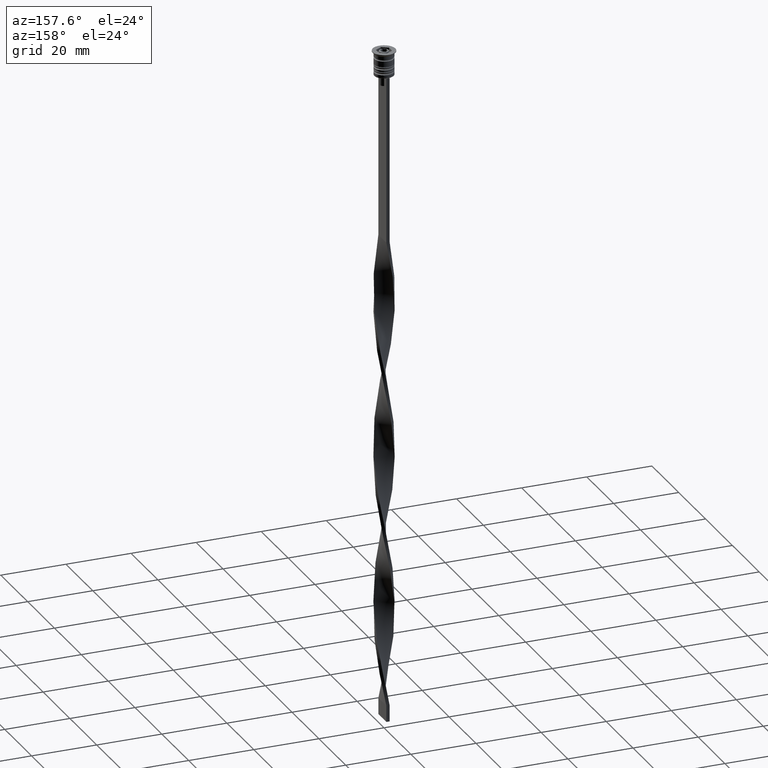
[diagram: clean part render]
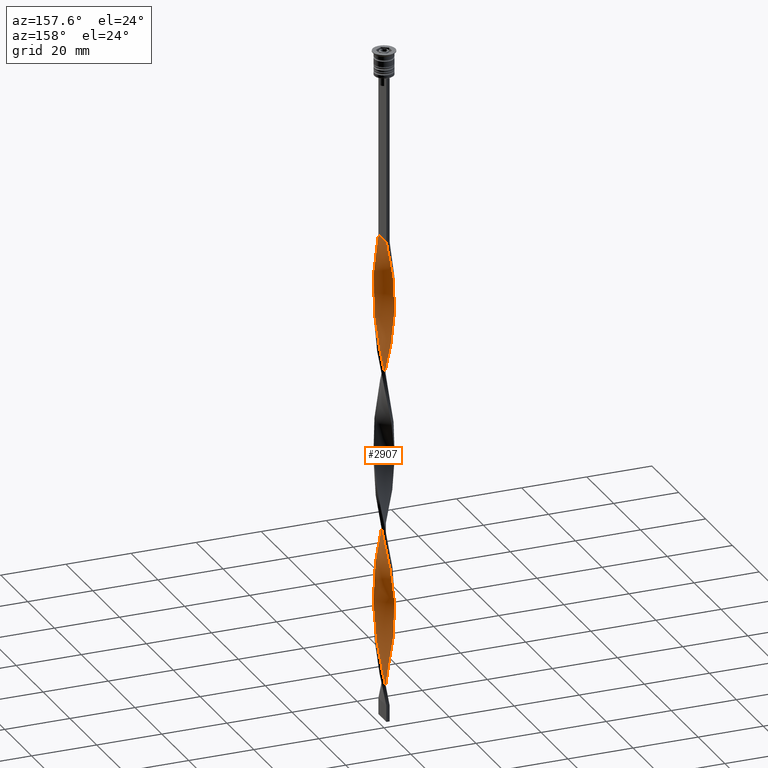
[diagram: same view with one face highlighted and labeled with its STEP entity id]
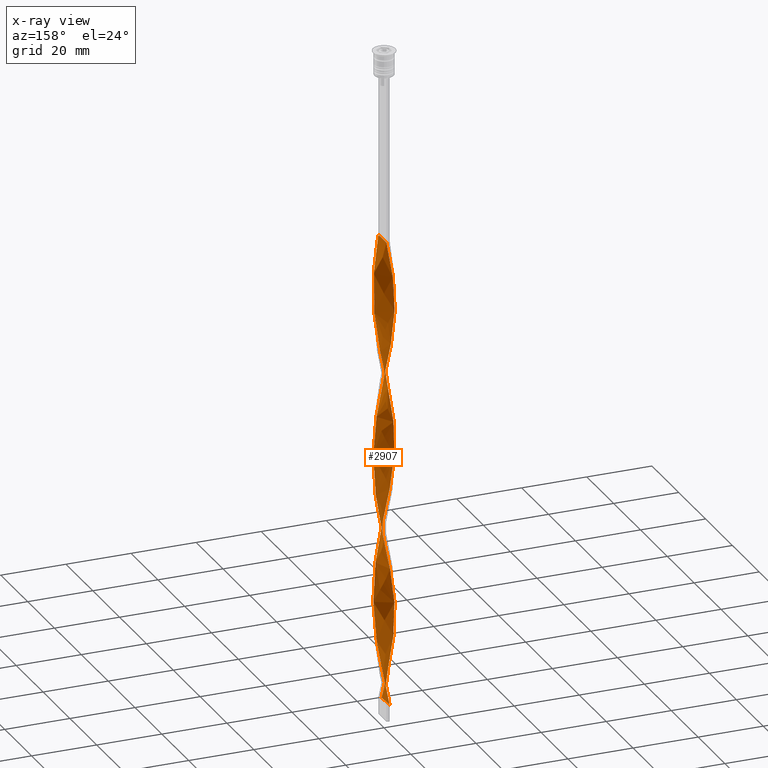
[diagram: x-ray of the same camera — body ghosted, the highlighted face saturated]
A machine part, auxiliary view. The second image highlights one B-rep face of the part: STEP entity #2907.
The next image is the same camera in x-ray: the body ghosted, the highlighted face saturated — about 0% of this face is hidden behind the body in this view.
In plain terms, the highlighted face is a freeform B-spline surface patch.
Its self-contained STEP definition (entity closure, byte-faithful):
#11 = CARTESIAN_POINT ( 'NONE',  ( -2.941068349153452388, 0.7746721665374231014, -177.0882352941176237 ) ) ;
#13 = CARTESIAN_POINT ( 'NONE',  ( 0.05976200360776034309, 3.040794057959990582, -103.6764705882352899 ) ) ;
#27 = CARTESIAN_POINT ( 'NONE',  ( -0.8934446992291310563, 2.920818749814322324, -161.5588235294117396 ) ) ;
#29 = CARTESIAN_POINT ( 'NONE',  ( 2.390591389550001278, -1.880178929838698831, -165.7941176470588118 ) ) ;
#45 = CARTESIAN_POINT ( 'NONE',  ( 3.033336708616754862, 0.2210620097576110610, -177.0882352941176237 ) ) ;
#47 = CARTESIAN_POINT ( 'NONE',  ( -1.414931142305390965, -2.706916227440719247, -144.6176470588235361 ) ) ;
#65 = CARTESIAN_POINT ( 'NONE',  ( -2.390591389550001278, 1.880178929838698831, -117.7941176470588118 ) ) ;
#67 = CARTESIAN_POINT ( 'NONE',  ( -0.2220090612739111235, 3.046331823121015692, -105.0882352941176521 ) ) ;
#82 = CARTESIAN_POINT ( 'NONE',  ( 2.748645434482416050, 1.301901791802658304, -182.7352941176470438 ) ) ;
#84 = CARTESIAN_POINT ( 'NONE',  ( -2.092734363651091112, -2.206912522777888519, -140.3823529411764639 ) ) ;
#101 = CARTESIAN_POINT ( 'NONE',  ( 1.307479267857234673, -2.760420903407855509, -158.7352941176470154 ) ) ;
#121 = CARTESIAN_POINT ( 'NONE',  ( -1.792442958670038555, 2.473170806831126889, -113.5588235294117538 ) ) ;
#124 = CARTESIAN_POINT ( 'NONE',  ( 2.825922375284400712, -1.159132575987103841, -170.0294117647058840 ) ) ;
#138 = CARTESIAN_POINT ( 'NONE',  ( 2.297234924948885926, -2.012992126025985762, -122.0294117647058840 ) ) ;
#142 = CARTESIAN_POINT ( 'NONE',  ( 3.033336708616754862, 0.2210620097576110610, -177.0882352941176237 ) ) ;
#145 = CARTESIAN_POINT ( 'NONE',  ( 3.022308424554498441, 0.3400761486298388703, -134.7352941176470722 ) ) ;
#156 = CARTESIAN_POINT ( 'NONE',  ( 3.053821120486486240, 0.06001802994261524332, -133.3235294117646959 ) ) ;
#162 = CARTESIAN_POINT ( 'NONE',  ( 2.462620696176918145, 1.784796713007145597, -185.5588235294117396 ) ) ;
#166 = CARTESIAN_POINT ( 'NONE',  ( -2.748645434482416050, 1.301901791802657860, -78.26470588235292780 ) ) ;
#182 = CARTESIAN_POINT ( 'NONE',  ( 1.042735103291660970, 2.857044540143419908, -151.6764705882353041 ) ) ;
#187 = CARTESIAN_POINT ( 'NONE',  ( 2.092734363651090668, 2.206912522777888963, -188.3823529411764355 ) ) ;
#190 = CARTESIAN_POINT ( 'NONE',  ( 3.012852296747023484, 0.5021420494578369143, -178.5000000000000000 ) ) ;
#193 = CARTESIAN_POINT ( 'NONE',  ( 1.651582472329342188, -2.553874573485256150, -117.7941176470588118 ) ) ;
#209 = CARTESIAN_POINT ( 'NONE',  ( -1.549961113263636614, -2.616795855119490533, -100.8529411764705941 ) ) ;
#210 = CARTESIAN_POINT ( 'NONE',  ( 0.8934446992291308343, -2.920818749814322324, -113.5588235294117538 ) ) ;
#212 = CARTESIAN_POINT ( 'NONE',  ( -2.216367154323709787, -2.101699844669203010, -192.6176470588235077 ) ) ;
#226 = CARTESIAN_POINT ( 'NONE',  ( -3.012852296747023484, 0.5021420494578373583, -82.49999999999998579 ) ) ;
#227 = CARTESIAN_POINT ( 'NONE',  ( 2.462620696176918589, -1.784796713007145375, -123.4411764705882177 ) ) ;
#229 = CARTESIAN_POINT ( 'NONE',  ( 0.6174888838592811346, 2.978037521306644120, -100.8529411764705941 ) ) ;
#248 = CARTESIAN_POINT ( 'NONE',  ( -1.042735103291662080, -2.857044540143419908, -103.6764705882352899 ) ) ;
#250 = CARTESIAN_POINT ( 'NONE',  ( -2.695369000030346740, -1.408895295497649247, -188.3823529411764355 ) ) ;
#253 = CARTESIAN_POINT ( 'NONE',  ( 1.792442958670039221, -2.473170806831127333, -65.55882352941178226 ) ) ;
#269 = CARTESIAN_POINT ( 'NONE',  ( -3.033336708616754418, 0.2210620097576115606, -179.9117647058823195 ) ) ;
#271 = CARTESIAN_POINT ( 'NONE',  ( 0.7779909387260891540, -2.953668176878985641, -59.91176470588236214 ) ) ;
#286 = CARTESIAN_POINT ( 'NONE',  ( 2.092734363651090668, 2.206912522777888963, -92.38235294117646390 ) ) ;
#288 = CARTESIAN_POINT ( 'NONE',  ( 2.216367154323709787, -2.101699844669203010, -68.38235294117646390 ) ) ;
#305 = CARTESIAN_POINT ( 'NONE',  ( 0.4999999999999998890, 3.000000000000000000, -154.4999999999999716 ) ) ;
#307 = CARTESIAN_POINT ( 'NONE',  ( -2.004405056496874504, 2.287435325750164061, -114.9705882352941018 ) ) ;
#324 = CARTESIAN_POINT ( 'NONE',  ( 2.216367154323710231, -2.101699844669203010, -68.38235294117646390 ) ) ;
#327 = CARTESIAN_POINT ( 'NONE',  ( -0.8934446992291305012, -2.920818749814322324, -147.4411764705882320 ) ) ;
#341 = CARTESIAN_POINT ( 'NONE',  ( 2.825922375284400712, -1.159132575987104063, -170.0294117647058556 ) ) ;
#344 = CARTESIAN_POINT ( 'NONE',  ( -2.628006467404950808, -1.556601299988306542, -136.1470588235294201 ) ) ;
#346 = CARTESIAN_POINT ( 'NONE',  ( -0.4999999999999995559, 3.000000000000000000, -202.4999999999999716 ) ) ;
#358 = CARTESIAN_POINT ( 'NONE',  ( 1.414931142305390521, 2.706916227440719247, -96.61764705882353610 ) ) ;
#372 = CARTESIAN_POINT ( 'NONE',  ( 0.6174888838592811346, 2.978037521306644120, -100.8529411764705941 ) ) ;
#374 = CARTESIAN_POINT ( 'NONE',  ( -3.033336708616754418, -0.2210620097576114496, -129.0882352941176521 ) ) ;
#377 = FACE_OUTER_BOUND ( 'NONE', #3364, .T. ) ;
#392 = CARTESIAN_POINT ( 'NONE',  ( -1.549961113263637058, 2.616795855119490533, -112.1470588235294059 ) ) ;
#404 = CARTESIAN_POINT ( 'NONE',  ( -0.4999999999999995559, 3.000000000000000000, -202.4999999999999716 ) ) ;
#405 = CARTESIAN_POINT ( 'NONE',  ( 2.748645434482415606, -1.301901791802658970, -126.2647058823529420 ) ) ;
#407 = CARTESIAN_POINT ( 'NONE',  ( -1.888233802353293855, -2.400832919529793941, -141.7941176470588118 ) ) ;
#411 = CARTESIAN_POINT ( 'NONE',  ( 2.092734363651090668, 2.206912522777888963, -188.3823529411764355 ) ) ;
#424 = CARTESIAN_POINT ( 'NONE',  ( 3.033336708616754418, -0.2210620097576125875, -131.9117647058823479 ) ) ;
#447 = CARTESIAN_POINT ( 'NONE',  ( 1.888233802353294966, -2.400832919529793497, -119.2058823529411598 ) ) ;
#456 = CARTESIAN_POINT ( 'NONE',  ( -2.695369000030346740, -1.408895295497649247, -92.38235294117646390 ) ) ;
#472 = CARTESIAN_POINT ( 'NONE',  ( 2.695369000030347184, 1.408895295497648803, -140.3823529411764639 ) ) ;
#492 = CARTESIAN_POINT ( 'NONE',  ( -2.004405056496874504, -2.287435325750164505, -98.02941176470588402 ) ) ;
#494 = CARTESIAN_POINT ( 'NONE',  ( -2.390591389550001722, -1.880178929838698387, -95.20588235294117396 ) ) ;
#514 = CARTESIAN_POINT ( 'NONE',  ( -2.004405056496874504, -2.287435325750164505, -98.02941176470588402 ) ) ;
#516 = CARTESIAN_POINT ( 'NONE',  ( 1.414931142305390299, 2.706916227440719247, -96.61764705882355031 ) ) ;
#532 = CARTESIAN_POINT ( 'NONE',  ( -1.888233802353294966, 2.400832919529793497, -71.20588235294118817 ) ) ;
#534 = CARTESIAN_POINT ( 'NONE',  ( -1.792442958670039443, -2.473170806831126889, -195.4411764705882604 ) ) ;
#550 = CARTESIAN_POINT ( 'NONE',  ( -2.869284401559882625, 1.047202283617009400, -175.6764705882353041 ) ) ;
#553 = CARTESIAN_POINT ( 'NONE',  ( -1.549961113263636614, -2.616795855119490533, -196.8529411764705515 ) ) ;
#569 = CARTESIAN_POINT ( 'NONE',  ( 2.628006467404950364, 1.556601299988306986, -88.14705882352940591 ) ) ;
#571 = CARTESIAN_POINT ( 'NONE',  ( -2.004405056496874504, -2.287435325750164505, -194.0294117647058556 ) ) ;
#572 =( BOUNDED_CURVE ( )  B_SPLINE_CURVE ( 2, ( #2381, #692, #2713, #3576, #993, #3517, #2150, #3288, #3235, #2214, #2472, #2198, #1679, #1635, #2449, #3332, #3596, #226, #1590, #1093, #1914, #3109, #1016, #3314, #734, #3049, #3348, #2534, #492, #2795, #209, #2512, #248, #1409, #1700, #3326, #1365, #2143, #1279, #722, #745, #1348, #2505, #447, #1868, #138, #3281, #2704, #405, #3042, #2746, #2188, #424, #156, #1322, #1582, #3024, #1032, #3060, #3628, #1626, #2441, #2767, #1892, #1560, #762, #182, #2227, #2424, #2486, #2207, #3002, #3340, #1925, #1650, #3646, #1063, #703, #784, #3569, #2725, #1301, #3588, #1008, #1971, #1413, #1376, #3131, #590, #3112, #2557, #2515, #866, #1755, #3094, #212, #571, #534, #553, #3410, #2537, #3730, #1721 ),
 .UNSPECIFIED., .F., .T. ) 
 B_SPLINE_CURVE_WITH_KNOTS ( ( 3, 2, 2, 2, 2, 2, 2, 2, 2, 2, 2, 2, 2, 2, 2, 2, 2, 2, 2, 2, 2, 2, 2, 2, 2, 2, 2, 2, 2, 2, 2, 2, 2, 2, 2, 2, 2, 2, 2, 2, 2, 2, 2, 2, 2, 2, 2, 2, 2, 2, 2, 3 ),
 ( 0.000000000000000000, 0.01470588235294117453, 0.02941176470588234906, 0.04411764705882353227, 0.05882352941176469813, 0.07352941176470588480, 0.08823529411764706454, 0.1029411764705882443, 0.1176470588235293963, 0.1323529411764705899, 0.1470588235294117696, 0.1617647058823529493, 0.1764705882352941291, 0.1911764705882352811, 0.2058823529411764885, 0.2205882352941176405, 0.2352941176470587925, 0.2500000000000000000, 0.2647058823529411797, 0.2794117647058823595, 0.2941176470588235392, 0.3088235294117647189, 0.3235294117647058987, 0.3382352941176470229, 0.3529411764705882582, 0.3676470588235294379, 0.3823529411764705621, 0.3970588235294117418, 0.4117647058823529771, 0.4264705882352941013, 0.4411764705882352811, 0.4558823529411764608, 0.4705882352941175850, 0.4852941176470588203, 0.5000000000000000000, 0.5147058823529411242, 0.5294117647058823595, 0.5441176470588234837, 0.5588235294117647189, 0.5735294117647058432, 0.5882352941176470784, 0.6029411764705882026, 0.6176470588235294379, 0.6323529411764705621, 0.6470588235294117974, 0.6617647058823529216, 0.6764705882352940458, 0.6911764705882351700, 0.7058823529411765163, 0.7205882352941176405, 0.7352941176470588758, 0.7500000000000000000 ),
 .UNSPECIFIED. ) 
 CURVE ( )  GEOMETRIC_REPRESENTATION_ITEM ( )  RATIONAL_B_SPLINE_CURVE ( ( 1.000000000000000000, 0.9957341762950344677, 1.000000000000000000, 0.9957341762950344677, 1.000000000000000000, 0.9957341762950344677, 1.000000000000000000, 0.9957341762950344677, 1.000000000000000000, 0.9957341762950344677, 1.000000000000000000, 0.9957341762950344677, 1.000000000000000000, 0.9957341762950344677, 1.000000000000000000, 0.9957341762950344677, 1.000000000000000000, 0.9957341762950344677, 1.000000000000000000, 0.9957341762950344677, 1.000000000000000000, 0.9957341762950344677, 1.000000000000000000, 0.9957341762950344677, 1.000000000000000000, 0.9957341762950344677, 1.000000000000000000, 0.9957341762950344677, 1.000000000000000000, 0.9957341762950344677, 1.000000000000000000, 0.9957341762950344677, 1.000000000000000000, 0.9957341762950344677, 1.000000000000000000, 0.9957341762950344677, 1.000000000000000000, 0.9957341762950344677, 1.000000000000000000, 0.9957341762950344677, 1.000000000000000000, 0.9957341762950344677, 1.000000000000000000, 0.9957341762950344677, 1.000000000000000000, 0.9957341762950344677, 1.000000000000000000, 0.9957341762950344677, 1.000000000000000000, 0.9957341762950344677, 1.000000000000000000, 0.9957341762950344677, 1.000000000000000000, 0.9957341762950344677, 1.000000000000000000, 0.9957341762950344677, 1.000000000000000000, 0.9957341762950344677, 1.000000000000000000, 0.9957341762950344677, 1.000000000000000000, 0.9957341762950344677, 1.000000000000000000, 0.9957341762950344677, 1.000000000000000000, 0.9957341762950344677, 1.000000000000000000, 0.9957341762950344677, 1.000000000000000000, 0.9957341762950344677, 1.000000000000000000, 0.9957341762950344677, 1.000000000000000000, 0.9957341762950344677, 1.000000000000000000, 0.9957341762950344677, 1.000000000000000000, 0.9957341762950344677, 1.000000000000000000, 0.9957341762950344677, 1.000000000000000000, 0.9957341762950344677, 1.000000000000000000, 0.9957341762950344677, 1.000000000000000000, 0.9957341762950344677, 1.000000000000000000, 0.9957341762950344677, 1.000000000000000000, 0.9957341762950344677, 1.000000000000000000, 0.9957341762950344677, 1.000000000000000000, 0.9957341762950344677, 1.000000000000000000, 0.9957341762950344677, 1.000000000000000000, 0.9957341762950344677, 1.000000000000000000, 0.9957341762950344677, 1.000000000000000000, 0.9957341762950344677, 1.000000000000000000 ) ) 
 REPRESENTATION_ITEM ( '' )  );
#588 = CARTESIAN_POINT ( 'NONE',  ( -3.012852296747023484, 0.5021420494578373583, -178.4999999999999716 ) ) ;
#590 = CARTESIAN_POINT ( 'NONE',  ( -3.022308424554498441, -0.3400761486298393144, -182.7352941176470438 ) ) ;
#605 = CARTESIAN_POINT ( 'NONE',  ( -2.825922375284400712, -1.159132575987104508, -186.9705882352941444 ) ) ;
#607 = CARTESIAN_POINT ( 'NONE',  ( 0.2220090612739107072, -3.046331823121016136, -153.0882352941176237 ) ) ;
#624 = CARTESIAN_POINT ( 'NONE',  ( 2.004405056496874504, -2.287435325750164505, -162.9705882352940876 ) ) ;
#626 = CARTESIAN_POINT ( 'NONE',  ( -0.6174888838592813567, -2.978037521306644120, -148.8529411764705799 ) ) ;
#636 = CARTESIAN_POINT ( 'NONE',  ( -3.053821120486486684, 0.06001802994261361962, -127.6764705882352615 ) ) ;
#638 = CARTESIAN_POINT ( 'NONE',  ( -2.390591389550001278, 1.880178929838698831, -117.7941176470588118 ) ) ;
#653 = CARTESIAN_POINT ( 'NONE',  ( 2.216367154323710231, -2.101699844669203010, -164.3823529411764923 ) ) ;
#671 = CARTESIAN_POINT ( 'NONE',  ( -2.941068349153452832, -0.7746721665374217691, -131.9117647058823479 ) ) ;
#673 = CARTESIAN_POINT ( 'NONE',  ( -1.792442958670038777, 2.473170806831127333, -113.5588235294117396 ) ) ;
#688 = CARTESIAN_POINT ( 'NONE',  ( -0.7779909387260893761, 2.953668176878985641, -107.9117647058823621 ) ) ;
#690 = CARTESIAN_POINT ( 'NONE',  ( 2.628006467404950364, 1.556601299988306986, -184.1470588235293917 ) ) ;
#692 = CARTESIAN_POINT ( 'NONE',  ( 0.2220090612739105962, 3.046331823121015248, -59.91176470588236214 ) ) ;
#703 = CARTESIAN_POINT ( 'NONE',  ( -1.888233802353294966, 2.400832919529793497, -167.2058823529411882 ) ) ;
#707 = CARTESIAN_POINT ( 'NONE',  ( -0.2220090612739111235, 3.046331823121015248, -201.0882352941176237 ) ) ;
#722 = CARTESIAN_POINT ( 'NONE',  ( 0.8934446992291308343, -2.920818749814322324, -113.5588235294117396 ) ) ;
#730 = CARTESIAN_POINT ( 'NONE',  ( 2.297234924948886370, 2.012992126025985762, -186.9705882352941444 ) ) ;
#734 = CARTESIAN_POINT ( 'NONE',  ( -2.695369000030346740, -1.408895295497649247, -92.38235294117646390 ) ) ;
#736 = CARTESIAN_POINT ( 'NONE',  ( 3.012852296747023484, -0.5021420494578376914, -130.5000000000000000 ) ) ;
#745 = CARTESIAN_POINT ( 'NONE',  ( 1.154187920767260511, -2.813867488627520341, -114.9705882352941018 ) ) ;
#751 = CARTESIAN_POINT ( 'NONE',  ( 0.8934446992291316114, 2.920818749814321880, -195.4411764705882604 ) ) ;
#752 = CARTESIAN_POINT ( 'NONE',  ( -0.7779909387260889320, -2.953668176878986973, -105.0882352941176521 ) ) ;
#762 = CARTESIAN_POINT ( 'NONE',  ( 1.307479267857235339, 2.760420903407855064, -150.2647058823528994 ) ) ;
#772 = CARTESIAN_POINT ( 'NONE',  ( 0.2220090612739105962, 3.046331823121014803, -59.91176470588236214 ) ) ;
#784 = CARTESIAN_POINT ( 'NONE',  ( -2.092734363651090224, 2.206912522777888963, -168.6176470588235077 ) ) ;
#789 = CARTESIAN_POINT ( 'NONE',  ( 1.154187920767260289, 2.813867488627520785, -194.0294117647058556 ) ) ;
#796 = CARTESIAN_POINT ( 'NONE',  ( -1.154187920767260289, 2.813867488627520785, -66.97058823529411598 ) ) ;
#798 = CARTESIAN_POINT ( 'NONE',  ( 1.651582472329342632, 2.553874573485255706, -95.20588235294117396 ) ) ;
#812 = CARTESIAN_POINT ( 'NONE',  ( 0.6174888838592815787, -2.978037521306644120, -112.1470588235294059 ) ) ;
#826 = CARTESIAN_POINT ( 'NONE',  ( -0.7779909387260889320, -2.953668176878986973, -201.0882352941176237 ) ) ;
#846 = CARTESIAN_POINT ( 'NONE',  ( 2.825922375284400712, -1.159132575987104063, -74.02941176470586981 ) ) ;
#849 = CARTESIAN_POINT ( 'NONE',  ( 2.390591389550001278, -1.880178929838698831, -69.79411764705881183 ) ) ;
#863 = CARTESIAN_POINT ( 'NONE',  ( -2.390591389550001722, -1.880178929838698387, -191.2058823529411598 ) ) ;
#866 = CARTESIAN_POINT ( 'NONE',  ( -2.695369000030346740, -1.408895295497649247, -188.3823529411764355 ) ) ;
#876 = CARTESIAN_POINT ( 'NONE',  ( 1.307479267857234673, -2.760420903407855509, -62.73529411764705799 ) ) ;
#878 = CARTESIAN_POINT ( 'NONE',  ( -0.3415330684894319901, -3.035256292798965916, -150.2647058823528994 ) ) ;
#895 = CARTESIAN_POINT ( 'NONE',  ( -3.053821120486486240, -0.06001802994261491719, -181.3235294117646674 ) ) ;
#897 = CARTESIAN_POINT ( 'NONE',  ( -2.908359051953456564, 0.8896334216520830340, -123.4411764705882177 ) ) ;
#918 = CARTESIAN_POINT ( 'NONE',  ( 2.869284401559882625, 1.047202283617009400, -181.3235294117646674 ) ) ;
#920 = CARTESIAN_POINT ( 'NONE',  ( 2.564815624776293213, -1.658658015008195319, -167.2058823529411882 ) ) ;
#934 = CARTESIAN_POINT ( 'NONE',  ( 2.564815624776293213, -1.658658015008195319, -167.2058823529411882 ) ) ;
#935 = CARTESIAN_POINT ( 'NONE',  ( -1.888233802353293855, -2.400832919529793941, -141.7941176470587834 ) ) ;
#951 = CARTESIAN_POINT ( 'NONE',  ( -2.462620696176917257, -1.784796713007146485, -137.5588235294117680 ) ) ;
#971 = CARTESIAN_POINT ( 'NONE',  ( -1.154187920767261843, -2.813867488627519897, -146.0294117647058556 ) ) ;
#989 = CARTESIAN_POINT ( 'NONE',  ( -3.033336708616754418, -0.2210620097576114496, -129.0882352941176521 ) ) ;
#993 = CARTESIAN_POINT ( 'NONE',  ( -0.6174888838592811346, 2.978037521306644120, -64.14705882352940591 ) ) ;
#1008 = CARTESIAN_POINT ( 'NONE',  ( -2.869284401559882625, 1.047202283617009400, -175.6764705882353041 ) ) ;
#1014 = CARTESIAN_POINT ( 'NONE',  ( 2.908359051953456564, -0.8896334216520838112, -171.4411764705882035 ) ) ;
#1016 = CARTESIAN_POINT ( 'NONE',  ( -2.908359051953456120, -0.8896334216520835891, -89.55882352941175384 ) ) ;
#1018 = CARTESIAN_POINT ( 'NONE',  ( 2.564815624776292768, 1.658658015008195985, -141.7941176470588118 ) ) ;
#1032 = CARTESIAN_POINT ( 'NONE',  ( 2.825922375284400712, 1.159132575987103841, -138.9705882352941160 ) ) ;
#1040 = CARTESIAN_POINT ( 'NONE',  ( 2.941068349153452832, -0.7746721665374229904, -129.0882352941176521 ) ) ;
#1049 = VERTEX_POINT ( 'NONE', #2256 ) ;
#1050 = CARTESIAN_POINT ( 'NONE',  ( 1.888233802353294966, 2.400832919529793497, -189.7941176470588118 ) ) ;
#1053 = CARTESIAN_POINT ( 'NONE',  ( 2.990795728622511529, 0.6201342673170625597, -136.1470588235294201 ) ) ;
#1063 = CARTESIAN_POINT ( 'NONE',  ( -1.651582472329342188, 2.553874573485256150, -165.7941176470588118 ) ) ;
#1072 = CARTESIAN_POINT ( 'NONE',  ( 1.154187920767260511, -2.813867488627520341, -114.9705882352941018 ) ) ;
#1073 = CARTESIAN_POINT ( 'NONE',  ( 2.462620696176918145, 1.784796713007145597, -89.55882352941175384 ) ) ;
#1088 = CARTESIAN_POINT ( 'NONE',  ( 0.8934446992291316114, 2.920818749814321880, -195.4411764705882604 ) ) ;
#1093 = CARTESIAN_POINT ( 'NONE',  ( -3.053821120486486240, -0.06001802994261491719, -85.32352941176469585 ) ) ;
#1096 = CARTESIAN_POINT ( 'NONE',  ( 1.888233802353294966, -2.400832919529793497, -119.2058823529411455 ) ) ;
#1098 = CARTESIAN_POINT ( 'NONE',  ( 2.695369000030346296, -1.408895295497649691, -72.61764705882352189 ) ) ;
#1117 = CARTESIAN_POINT ( 'NONE',  ( -2.908359051953456120, -0.8896334216520835891, -185.5588235294117396 ) ) ;
#1119 = CARTESIAN_POINT ( 'NONE',  ( 2.564815624776293213, -1.658658015008195319, -71.20588235294118817 ) ) ;
#1135 = CARTESIAN_POINT ( 'NONE',  ( 3.012852296747023484, 0.5021420494578369143, -82.49999999999998579 ) ) ;
#1137 = CARTESIAN_POINT ( 'NONE',  ( 3.033336708616754862, 0.2210620097576110610, -81.08823529411763786 ) ) ;
#1155 = CARTESIAN_POINT ( 'NONE',  ( -2.092734363651090224, 2.206912522777888963, -168.6176470588235077 ) ) ;
#1157 = CARTESIAN_POINT ( 'NONE',  ( 2.990795728622512417, -0.6201342673170637809, -76.85294117647059409 ) ) ;
#1173 = CARTESIAN_POINT ( 'NONE',  ( 1.549961113263636836, 2.616795855119490533, -148.8529411764705799 ) ) ;
#1176 = CARTESIAN_POINT ( 'NONE',  ( -0.7779909387260893761, 2.953668176878985641, -107.9117647058823621 ) ) ;
#1190 = CARTESIAN_POINT ( 'NONE',  ( -2.297234924948886814, 2.012992126025985318, -170.0294117647058556 ) ) ;
#1193 = CARTESIAN_POINT ( 'NONE',  ( -1.042735103291661192, 2.857044540143419908, -109.3235294117646959 ) ) ;
#1195 = EDGE_CURVE ( 'NONE', #1992, #3427, #2459, .T. ) ;
#1210 = CARTESIAN_POINT ( 'NONE',  ( -2.990795728622511973, 0.6201342673170635589, -124.8529411764705799 ) ) ;
#1212 = CARTESIAN_POINT ( 'NONE',  ( 1.549961113263636614, -2.616795855119490533, -160.1470588235293917 ) ) ;
#1227 = CARTESIAN_POINT ( 'NONE',  ( -2.297234924948886814, -2.012992126025985318, -138.9705882352941160 ) ) ;
#1230 = CARTESIAN_POINT ( 'NONE',  ( -2.869284401559882625, -1.047202283617009844, -133.3235294117646959 ) ) ;
#1246 = CARTESIAN_POINT ( 'NONE',  ( -0.4999999999999995559, 3.000000000000000000, -106.4999999999999858 ) ) ;
#1261 = CARTESIAN_POINT ( 'NONE',  ( -2.092734363651091112, -2.206912522777888519, -140.3823529411764639 ) ) ;
#1262 = CARTESIAN_POINT ( 'NONE',  ( 1.154187920767260289, 2.813867488627520785, -194.0294117647058556 ) ) ;
#1279 = CARTESIAN_POINT ( 'NONE',  ( 0.6174888838592815787, -2.978037521306644120, -112.1470588235294059 ) ) ;
#1282 = CARTESIAN_POINT ( 'NONE',  ( 1.549961113263636614, -2.616795855119490533, -160.1470588235293917 ) ) ;
#1284 = CARTESIAN_POINT ( 'NONE',  ( 2.695369000030346296, -1.408895295497649691, -168.6176470588235077 ) ) ;
#1301 = CARTESIAN_POINT ( 'NONE',  ( -2.628006467404950364, 1.556601299988307430, -172.8529411764705799 ) ) ;
#1309 = CARTESIAN_POINT ( 'NONE',  ( -3.033336708616754418, 0.2210620097576115606, -83.91176470588234793 ) ) ;
#1312 = EDGE_CURVE ( 'NONE', #2593, #1992, #572, .T. ) ;
#1322 = CARTESIAN_POINT ( 'NONE',  ( 3.022308424554498441, 0.3400761486298388703, -134.7352941176470722 ) ) ;
#1330 = CARTESIAN_POINT ( 'NONE',  ( 3.022308424554498441, -0.3400761486298388703, -174.2647058823529278 ) ) ;
#1334 = CARTESIAN_POINT ( 'NONE',  ( -0.6174888838592811346, 2.978037521306644120, -64.14705882352940591 ) ) ;
#1348 = CARTESIAN_POINT ( 'NONE',  ( 1.414931142305389411, -2.706916227440719691, -116.3823529411764781 ) ) ;
#1351 = CARTESIAN_POINT ( 'NONE',  ( 1.888233802353294966, 2.400832919529793497, -189.7941176470587834 ) ) ;
#1353 = CARTESIAN_POINT ( 'NONE',  ( 2.748645434482416050, 1.301901791802658304, -182.7352941176470438 ) ) ;
#1356 = CARTESIAN_POINT ( 'NONE',  ( -0.5000000000000002220, -3.000000000000000000, -106.4999999999999858 ) ) ;
#1365 = CARTESIAN_POINT ( 'NONE',  ( 0.05976200360775958675, -3.040794057959990582, -109.3235294117646959 ) ) ;
#1366 = EDGE_CURVE ( 'NONE', #1049, #3427, #1726, .T. ) ;
#1375 = CARTESIAN_POINT ( 'NONE',  ( -0.05976200360776023901, 3.040794057959990582, -61.32352941176470296 ) ) ;
#1376 = CARTESIAN_POINT ( 'NONE',  ( -3.033336708616754418, 0.2210620097576115606, -179.9117647058823195 ) ) ;
#1386 = CARTESIAN_POINT ( 'NONE',  ( -0.5000000000000002220, -3.000000000000000000, -202.4999999999999716 ) ) ;
#1387 = CARTESIAN_POINT ( 'NONE',  ( 2.462620696176918145, 1.784796713007145597, -185.5588235294117396 ) ) ;
#1392 = CARTESIAN_POINT ( 'NONE',  ( -2.216367154323710231, -2.101699844669203010, -96.61764705882353610 ) ) ;
#1394 = CARTESIAN_POINT ( 'NONE',  ( 2.092734363651090668, 2.206912522777888963, -92.38235294117646390 ) ) ;
#1399 = VECTOR ( 'NONE', #1548, 1000.000000000000000 ) ;
#1409 = CARTESIAN_POINT ( 'NONE',  ( -0.7779909387260889320, -2.953668176878986529, -105.0882352941176521 ) ) ;
#1411 = CARTESIAN_POINT ( 'NONE',  ( -2.216367154323710231, -2.101699844669203010, -192.6176470588235077 ) ) ;
#1413 = CARTESIAN_POINT ( 'NONE',  ( -3.012852296747023484, 0.5021420494578373583, -178.5000000000000000 ) ) ;
#1417 = EDGE_CURVE ( 'NONE', #1049, #2593, #1565, .T. ) ;
#1429 = CARTESIAN_POINT ( 'NONE',  ( 0.4999999999999998890, -3.000000000000000000, -58.50000000000000000 ) ) ;
#1431 = CARTESIAN_POINT ( 'NONE',  ( 1.042735103291661858, -2.857044540143419908, -61.32352941176470296 ) ) ;
#1445 = CARTESIAN_POINT ( 'NONE',  ( 2.390591389550001278, -1.880178929838698831, -69.79411764705881183 ) ) ;
#1448 = CARTESIAN_POINT ( 'NONE',  ( 0.4999999999999998890, -3.000000000000000000, -58.50000000000000000 ) ) ;
#1469 = CARTESIAN_POINT ( 'NONE',  ( -2.990795728622511973, -0.6201342673170633368, -184.1470588235293917 ) ) ;
#1471 = CARTESIAN_POINT ( 'NONE',  ( -3.012852296747023484, -0.5021420494578365812, -130.5000000000000000 ) ) ;
#1486 = CARTESIAN_POINT ( 'NONE',  ( 1.042735103291661858, -2.857044540143419908, -61.32352941176470296 ) ) ;
#1498 = CARTESIAN_POINT ( 'NONE',  ( 2.990795728622511973, -0.6201342673170637809, -172.8529411764705799 ) ) ;
#1513 = CARTESIAN_POINT ( 'NONE',  ( 1.888233802353294966, 2.400832919529793497, -93.79411764705881183 ) ) ;
#1516 = CARTESIAN_POINT ( 'NONE',  ( -2.297234924948886370, -2.012992126025985318, -138.9705882352941160 ) ) ;
#1529 = CARTESIAN_POINT ( 'NONE',  ( -2.004405056496874504, 2.287435325750164061, -114.9705882352941018 ) ) ;
#1531 = CARTESIAN_POINT ( 'NONE',  ( -2.825922375284401156, 1.159132575987104730, -122.0294117647058840 ) ) ;
#1546 = CARTESIAN_POINT ( 'NONE',  ( -3.022308424554498885, 0.3400761486298399805, -126.2647058823529420 ) ) ;
#1548 = DIRECTION ( 'NONE',  ( 0.000000000000000000, 1.000000000000000000, 0.000000000000000000 ) ) ;
#1560 = CARTESIAN_POINT ( 'NONE',  ( 1.549961113263636836, 2.616795855119490533, -148.8529411764705799 ) ) ;
#1564 = CARTESIAN_POINT ( 'NONE',  ( 1.651582472329342632, 2.553874573485255706, -95.20588235294117396 ) ) ;
#1565 = LINE ( 'NONE', #3554, #1399 ) ;
#1582 = CARTESIAN_POINT ( 'NONE',  ( 2.990795728622511973, 0.6201342673170626707, -136.1470588235294201 ) ) ;
#1590 = CARTESIAN_POINT ( 'NONE',  ( -3.033336708616754418, 0.2210620097576115606, -83.91176470588234793 ) ) ;
#1611 = CARTESIAN_POINT ( 'NONE',  ( 1.414931142305390299, 2.706916227440719247, -192.6176470588235077 ) ) ;
#1615 = CARTESIAN_POINT ( 'NONE',  ( 2.869284401559883069, -1.047202283617008511, -127.6764705882352615 ) ) ;
#1626 = CARTESIAN_POINT ( 'NONE',  ( 2.390591389550000834, 1.880178929838699053, -143.2058823529411882 ) ) ;
#1630 = CARTESIAN_POINT ( 'NONE',  ( 0.3415330684894316571, 3.035256292798965916, -198.2647058823529562 ) ) ;
#1635 = CARTESIAN_POINT ( 'NONE',  ( -2.628006467404950364, 1.556601299988307430, -76.85294117647059409 ) ) ;
#1637 = CARTESIAN_POINT ( 'NONE',  ( -3.012852296747023484, 0.5021420494578373583, -82.49999999999998579 ) ) ;
#1650 = CARTESIAN_POINT ( 'NONE',  ( -1.154187920767260289, 2.813867488627520785, -162.9705882352940876 ) ) ;
#1661 = CARTESIAN_POINT ( 'NONE',  ( -0.8934446992291310563, 2.920818749814322324, -65.55882352941179647 ) ) ;
#1679 = CARTESIAN_POINT ( 'NONE',  ( -2.462620696176917701, 1.784796713007145819, -75.44117647058823195 ) ) ;
#1680 = CARTESIAN_POINT ( 'NONE',  ( 0.3415330684894309909, -3.035256292798965916, -110.7352941176470438 ) ) ;
#1682 = CARTESIAN_POINT ( 'NONE',  ( 1.154187920767260289, 2.813867488627520785, -98.02941176470588402 ) ) ;
#1700 = CARTESIAN_POINT ( 'NONE',  ( -0.5000000000000002220, -3.000000000000000000, -106.4999999999999858 ) ) ;
#1702 = CARTESIAN_POINT ( 'NONE',  ( -2.462620696176917701, 1.784796713007145819, -171.4411764705882035 ) ) ;
#1718 = CARTESIAN_POINT ( 'NONE',  ( -2.564815624776293213, -1.658658015008195319, -189.7941176470587834 ) ) ;
#1721 = CARTESIAN_POINT ( 'NONE',  ( -0.5000000000000002220, -3.000000000000000000, -202.4999999999999716 ) ) ;
#1726 =( BOUNDED_CURVE ( )  B_SPLINE_CURVE ( 2, ( #1448, #271, #1431, #3167, #1739, #253, #3714, #288, #849, #1119, #1098, #2274, #2255, #1157, #3675, #1991, #1137, #2294, #3428, #2591, #2312, #3445, #1073, #2234, #1394, #3372, #798, #516, #1682, #2816, #229, #2396, #13, #67, #3232, #1176, #1193, #2344, #3461, #673, #307, #1819, #638, #3480, #3516, #1531, #897, #2643, #2955, #2064, #374, #1471, #3500, #1230, #2613, #344, #3535, #1516, #84, #935, #2327, #47, #2080, #327, #626, #878, #2045, #607, #1792, #1775, #1805, #2660, #1212, #2935, #2910, #2628, #29, #920, #1284, #124, #1014, #3047, #1330, #2168, #142, #190, #2212, #3346, #1353, #690, #162, #730, #411, #1050, #3635, #1611, #1262, #751, #2968, #1852, #3311, #1912, #1897 ),
 .UNSPECIFIED., .F., .T. ) 
 B_SPLINE_CURVE_WITH_KNOTS ( ( 3, 2, 2, 2, 2, 2, 2, 2, 2, 2, 2, 2, 2, 2, 2, 2, 2, 2, 2, 2, 2, 2, 2, 2, 2, 2, 2, 2, 2, 2, 2, 2, 2, 2, 2, 2, 2, 2, 2, 2, 2, 2, 2, 2, 2, 2, 2, 2, 2, 2, 2, 3 ),
 ( 0.000000000000000000, 0.01470588235294117453, 0.02941176470588234906, 0.04411764705882353227, 0.05882352941176469813, 0.07352941176470588480, 0.08823529411764706454, 0.1029411764705882443, 0.1176470588235293963, 0.1323529411764705899, 0.1470588235294117696, 0.1617647058823529493, 0.1764705882352941291, 0.1911764705882352811, 0.2058823529411764885, 0.2205882352941176405, 0.2352941176470587925, 0.2500000000000000000, 0.2647058823529411797, 0.2794117647058823595, 0.2941176470588235392, 0.3088235294117647189, 0.3235294117647058987, 0.3382352941176470229, 0.3529411764705882582, 0.3676470588235294379, 0.3823529411764705621, 0.3970588235294117418, 0.4117647058823529771, 0.4264705882352941013, 0.4411764705882352811, 0.4558823529411764608, 0.4705882352941175850, 0.4852941176470588203, 0.5000000000000000000, 0.5147058823529411242, 0.5294117647058823595, 0.5441176470588234837, 0.5588235294117647189, 0.5735294117647058432, 0.5882352941176470784, 0.6029411764705882026, 0.6176470588235294379, 0.6323529411764705621, 0.6470588235294117974, 0.6617647058823529216, 0.6764705882352940458, 0.6911764705882351700, 0.7058823529411765163, 0.7205882352941176405, 0.7352941176470588758, 0.7500000000000000000 ),
 .UNSPECIFIED. ) 
 CURVE ( )  GEOMETRIC_REPRESENTATION_ITEM ( )  RATIONAL_B_SPLINE_CURVE ( ( 1.000000000000000000, 0.9957341762950344677, 1.000000000000000000, 0.9957341762950344677, 1.000000000000000000, 0.9957341762950344677, 1.000000000000000000, 0.9957341762950344677, 1.000000000000000000, 0.9957341762950344677, 1.000000000000000000, 0.9957341762950344677, 1.000000000000000000, 0.9957341762950344677, 1.000000000000000000, 0.9957341762950344677, 1.000000000000000000, 0.9957341762950344677, 1.000000000000000000, 0.9957341762950344677, 1.000000000000000000, 0.9957341762950344677, 1.000000000000000000, 0.9957341762950344677, 1.000000000000000000, 0.9957341762950344677, 1.000000000000000000, 0.9957341762950344677, 1.000000000000000000, 0.9957341762950344677, 1.000000000000000000, 0.9957341762950344677, 1.000000000000000000, 0.9957341762950344677, 1.000000000000000000, 0.9957341762950344677, 1.000000000000000000, 0.9957341762950344677, 1.000000000000000000, 0.9957341762950344677, 1.000000000000000000, 0.9957341762950344677, 1.000000000000000000, 0.9957341762950344677, 1.000000000000000000, 0.9957341762950344677, 1.000000000000000000, 0.9957341762950344677, 1.000000000000000000, 0.9957341762950344677, 1.000000000000000000, 0.9957341762950344677, 1.000000000000000000, 0.9957341762950344677, 1.000000000000000000, 0.9957341762950344677, 1.000000000000000000, 0.9957341762950344677, 1.000000000000000000, 0.9957341762950344677, 1.000000000000000000, 0.9957341762950344677, 1.000000000000000000, 0.9957341762950344677, 1.000000000000000000, 0.9957341762950344677, 1.000000000000000000, 0.9957341762950344677, 1.000000000000000000, 0.9957341762950344677, 1.000000000000000000, 0.9957341762950344677, 1.000000000000000000, 0.9957341762950344677, 1.000000000000000000, 0.9957341762950344677, 1.000000000000000000, 0.9957341762950344677, 1.000000000000000000, 0.9957341762950344677, 1.000000000000000000, 0.9957341762950344677, 1.000000000000000000, 0.9957341762950344677, 1.000000000000000000, 0.9957341762950344677, 1.000000000000000000, 0.9957341762950344677, 1.000000000000000000, 0.9957341762950344677, 1.000000000000000000, 0.9957341762950344677, 1.000000000000000000, 0.9957341762950344677, 1.000000000000000000, 0.9957341762950344677, 1.000000000000000000, 0.9957341762950344677, 1.000000000000000000, 0.9957341762950344677, 1.000000000000000000, 0.9957341762950344677, 1.000000000000000000 ) ) 
 REPRESENTATION_ITEM ( '' )  );
#1737 = CARTESIAN_POINT ( 'NONE',  ( 2.297234924948886814, 2.012992126025985762, -90.97058823529413019 ) ) ;
#1739 = CARTESIAN_POINT ( 'NONE',  ( 1.549961113263636614, -2.616795855119490533, -64.14705882352940591 ) ) ;
#1752 = CARTESIAN_POINT ( 'NONE',  ( 0.7779909387260891540, -2.953668176878985641, -59.91176470588236214 ) ) ;
#1755 = CARTESIAN_POINT ( 'NONE',  ( -2.564815624776293213, -1.658658015008195319, -189.7941176470588118 ) ) ;
#1773 = CARTESIAN_POINT ( 'NONE',  ( 3.053821120486486240, -0.06001802994261470209, -79.67647058823528994 ) ) ;
#1775 = CARTESIAN_POINT ( 'NONE',  ( 0.7779909387260891540, -2.953668176878985641, -155.9117647058823763 ) ) ;
#1790 = CARTESIAN_POINT ( 'NONE',  ( 2.908359051953456564, -0.8896334216520838112, -171.4411764705882035 ) ) ;
#1792 = CARTESIAN_POINT ( 'NONE',  ( 0.4999999999999998890, -3.000000000000000000, -154.4999999999999716 ) ) ;
#1793 = CARTESIAN_POINT ( 'NONE',  ( -0.4999999999999997780, 1.000000000000000000, -202.4999999999999716 ) ) ;
#1803 = CARTESIAN_POINT ( 'NONE',  ( -2.216367154323709787, 2.101699844669203454, -116.3823529411764781 ) ) ;
#1805 = CARTESIAN_POINT ( 'NONE',  ( 1.042735103291661858, -2.857044540143419908, -157.3235294117646959 ) ) ;
#1817 = CARTESIAN_POINT ( 'NONE',  ( 0.7779909387260891540, -2.953668176878985641, -155.9117647058824048 ) ) ;
#1819 = CARTESIAN_POINT ( 'NONE',  ( -2.216367154323709343, 2.101699844669203454, -116.3823529411764781 ) ) ;
#1835 = CARTESIAN_POINT ( 'NONE',  ( -0.05976200360775937165, -3.040794057959990582, -151.6764705882353041 ) ) ;
#1850 = CARTESIAN_POINT ( 'NONE',  ( 1.792442958670038999, -2.473170806831126889, -161.5588235294117396 ) ) ;
#1852 = CARTESIAN_POINT ( 'NONE',  ( 0.3415330684894316016, 3.035256292798965916, -198.2647058823529562 ) ) ;
#1868 = CARTESIAN_POINT ( 'NONE',  ( 2.092734363651090224, -2.206912522777889407, -120.6176470588235219 ) ) ;
#1892 = CARTESIAN_POINT ( 'NONE',  ( 1.792442958670038777, 2.473170806831127333, -147.4411764705882320 ) ) ;
#1897 = CARTESIAN_POINT ( 'NONE',  ( -0.4999999999999995559, 3.000000000000000000, -202.4999999999999716 ) ) ;
#1899 = CARTESIAN_POINT ( 'NONE',  ( 2.390591389550000834, 1.880178929838699053, -143.2058823529411882 ) ) ;
#1910 = CARTESIAN_POINT ( 'NONE',  ( 2.628006467404950364, 1.556601299988306986, -184.1470588235293917 ) ) ;
#1912 = CARTESIAN_POINT ( 'NONE',  ( -0.2220090612739111235, 3.046331823121015692, -201.0882352941176237 ) ) ;
#1914 = CARTESIAN_POINT ( 'NONE',  ( -3.022308424554498441, -0.3400761486298393144, -86.73529411764704378 ) ) ;
#1915 = CARTESIAN_POINT ( 'NONE',  ( 0.05976200360775958675, -3.040794057959990582, -109.3235294117646959 ) ) ;
#1925 = CARTESIAN_POINT ( 'NONE',  ( -0.8934446992291310563, 2.920818749814322324, -161.5588235294117680 ) ) ;
#1928 = CARTESIAN_POINT ( 'NONE',  ( 1.414931142305390521, 2.706916227440719247, -192.6176470588235077 ) ) ;
#1931 = CARTESIAN_POINT ( 'NONE',  ( -2.092734363651090224, 2.206912522777888963, -72.61764705882352189 ) ) ;
#1952 = CARTESIAN_POINT ( 'NONE',  ( -2.941068349153452388, 0.7746721665374231014, -81.08823529411763786 ) ) ;
#1969 = CARTESIAN_POINT ( 'NONE',  ( 1.414931142305389633, -2.706916227440719691, -116.3823529411764781 ) ) ;
#1971 = CARTESIAN_POINT ( 'NONE',  ( -2.941068349153452388, 0.7746721665374231014, -177.0882352941176237 ) ) ;
#1989 = CARTESIAN_POINT ( 'NONE',  ( 0.7779909387260893761, 2.953668176878986529, -153.0882352941176237 ) ) ;
#1991 = CARTESIAN_POINT ( 'NONE',  ( 3.053821120486486240, -0.06001802994261470209, -79.67647058823528994 ) ) ;
#1992 = VERTEX_POINT ( 'NONE', #1386 ) ;
#2008 = CARTESIAN_POINT ( 'NONE',  ( 2.869284401559882625, 1.047202283617009400, -85.32352941176469585 ) ) ;
#2024 = CARTESIAN_POINT ( 'NONE',  ( -0.3415330684894309909, 3.035256292798965916, -158.7352941176470154 ) ) ;
#2042 = CARTESIAN_POINT ( 'NONE',  ( 2.908359051953456564, -0.8896334216520838112, -75.44117647058823195 ) ) ;
#2045 = CARTESIAN_POINT ( 'NONE',  ( -0.05976200360775937165, -3.040794057959990582, -151.6764705882353041 ) ) ;
#2062 = CARTESIAN_POINT ( 'NONE',  ( -1.154187920767260289, 2.813867488627520785, -162.9705882352940876 ) ) ;
#2064 = CARTESIAN_POINT ( 'NONE',  ( -3.053821120486486684, 0.06001802994261361268, -127.6764705882352757 ) ) ;
#2078 = CARTESIAN_POINT ( 'NONE',  ( -3.012852296747023484, -0.5021420494578365812, -130.5000000000000000 ) ) ;
#2080 = CARTESIAN_POINT ( 'NONE',  ( -1.154187920767261843, -2.813867488627519897, -146.0294117647058556 ) ) ;
#2093 = CARTESIAN_POINT ( 'NONE',  ( 3.012852296747023484, 0.5021420494578369143, -178.4999999999999716 ) ) ;
#2111 = CARTESIAN_POINT ( 'NONE',  ( -2.869284401559882625, -1.047202283617009844, -133.3235294117647243 ) ) ;
#2129 = CARTESIAN_POINT ( 'NONE',  ( -2.628006467404950808, -1.556601299988306542, -136.1470588235294201 ) ) ;
#2135 = ORIENTED_EDGE ( 'NONE', *, *, #1366, .T. ) ;
#2143 = CARTESIAN_POINT ( 'NONE',  ( 0.3415330684894309354, -3.035256292798965916, -110.7352941176470438 ) ) ;
#2146 = CARTESIAN_POINT ( 'NONE',  ( -1.042735103291661192, 2.857044540143419908, -109.3235294117646959 ) ) ;
#2150 = CARTESIAN_POINT ( 'NONE',  ( -1.154187920767260289, 2.813867488627520785, -66.97058823529411598 ) ) ;
#2168 = CARTESIAN_POINT ( 'NONE',  ( 3.053821120486486240, -0.06001802994261470209, -175.6764705882353041 ) ) ;
#2174 = CARTESIAN_POINT ( 'NONE',  ( 2.825922375284400712, 1.159132575987104063, -138.9705882352941160 ) ) ;
#2188 = CARTESIAN_POINT ( 'NONE',  ( 3.012852296747023484, -0.5021420494578376914, -130.5000000000000000 ) ) ;
#2198 = CARTESIAN_POINT ( 'NONE',  ( -2.297234924948886370, 2.012992126025985318, -74.02941176470586981 ) ) ;
#2200 = CARTESIAN_POINT ( 'NONE',  ( -2.869284401559882625, 1.047202283617009400, -79.67647058823528994 ) ) ;
#2207 = CARTESIAN_POINT ( 'NONE',  ( -0.05976200360776023901, 3.040794057959990582, -157.3235294117646959 ) ) ;
#2210 = CARTESIAN_POINT ( 'NONE',  ( -0.4999999999999995559, 3.000000000000000000, -202.4999999999999716 ) ) ;
#2212 = CARTESIAN_POINT ( 'NONE',  ( 2.941068349153452832, 0.7746721665374228794, -179.9117647058823195 ) ) ;
#2214 = CARTESIAN_POINT ( 'NONE',  ( -1.888233802353294966, 2.400832919529793497, -71.20588235294118817 ) ) ;
#2216 = CARTESIAN_POINT ( 'NONE',  ( 2.216367154323710675, 2.101699844669203010, -144.6176470588235361 ) ) ;
#2227 = CARTESIAN_POINT ( 'NONE',  ( 0.7779909387260893761, 2.953668176878986085, -153.0882352941176237 ) ) ;
#2232 = CARTESIAN_POINT ( 'NONE',  ( 2.092734363651090224, -2.206912522777889407, -120.6176470588235219 ) ) ;
#2234 = CARTESIAN_POINT ( 'NONE',  ( 2.297234924948886370, 2.012992126025985762, -90.97058823529411598 ) ) ;
#2252 = ORIENTED_EDGE ( 'NONE', *, *, #1195, .F. ) ;
#2254 = CARTESIAN_POINT ( 'NONE',  ( -2.462620696176917701, 1.784796713007145819, -75.44117647058823195 ) ) ;
#2255 = CARTESIAN_POINT ( 'NONE',  ( 2.908359051953456564, -0.8896334216520838112, -75.44117647058823195 ) ) ;
#2256 = CARTESIAN_POINT ( 'NONE',  ( 0.4999999999999998890, -3.000000000000000000, -58.50000000000000000 ) ) ;
#2271 = CARTESIAN_POINT ( 'NONE',  ( -1.042735103291662080, -2.857044540143419908, -199.6764705882352757 ) ) ;
#2274 = CARTESIAN_POINT ( 'NONE',  ( 2.825922375284400712, -1.159132575987103841, -74.02941176470586981 ) ) ;
#2292 = CARTESIAN_POINT ( 'NONE',  ( 2.941068349153452832, 0.7746721665374228794, -83.91176470588234793 ) ) ;
#2294 = CARTESIAN_POINT ( 'NONE',  ( 3.012852296747023484, 0.5021420494578369143, -82.49999999999998579 ) ) ;
#2295 = CARTESIAN_POINT ( 'NONE',  ( -0.5000000000000002220, -3.000000000000000000, -202.4999999999999716 ) ) ;
#2310 = CARTESIAN_POINT ( 'NONE',  ( 1.307479267857235561, 2.760420903407855064, -150.2647058823529278 ) ) ;
#2312 = CARTESIAN_POINT ( 'NONE',  ( 2.748645434482416050, 1.301901791802658304, -86.73529411764704378 ) ) ;
#2325 = CARTESIAN_POINT ( 'NONE',  ( -0.05976200360776023901, 3.040794057959990582, -157.3235294117646959 ) ) ;
#2327 = CARTESIAN_POINT ( 'NONE',  ( -1.651582472329341744, -2.553874573485256150, -143.2058823529411882 ) ) ;
#2341 = CARTESIAN_POINT ( 'NONE',  ( -2.748645434482416050, 1.301901791802657860, -174.2647058823529278 ) ) ;
#2344 = CARTESIAN_POINT ( 'NONE',  ( -1.307479267857234451, 2.760420903407855509, -110.7352941176470438 ) ) ;
#2360 = CARTESIAN_POINT ( 'NONE',  ( 2.695369000030346296, -1.408895295497649691, -168.6176470588235077 ) ) ;
#2378 = CARTESIAN_POINT ( 'NONE',  ( -1.651582472329341744, -2.553874573485256150, -143.2058823529411882 ) ) ;
#2381 = CARTESIAN_POINT ( 'NONE',  ( 0.4999999999999998890, 3.000000000000000000, -58.50000000000000000 ) ) ;
#2394 = CARTESIAN_POINT ( 'NONE',  ( 1.154187920767260289, 2.813867488627520785, -98.02941176470588402 ) ) ;
#2396 = CARTESIAN_POINT ( 'NONE',  ( 0.3415330684894316016, 3.035256292798965916, -102.2647058823529420 ) ) ;
#2399 = ORIENTED_EDGE ( 'NONE', *, *, #1417, .F. ) ;
#2406 = CARTESIAN_POINT ( 'NONE',  ( -0.2220090612739111235, 3.046331823121015248, -105.0882352941176521 ) ) ;
#2424 = CARTESIAN_POINT ( 'NONE',  ( 0.4999999999999998890, 3.000000000000000000, -154.4999999999999716 ) ) ;
#2426 = CARTESIAN_POINT ( 'NONE',  ( -0.3415330684894320457, -3.035256292798965472, -150.2647058823529278 ) ) ;
#2441 = CARTESIAN_POINT ( 'NONE',  ( 2.216367154323710231, 2.101699844669203010, -144.6176470588235361 ) ) ;
#2449 = CARTESIAN_POINT ( 'NONE',  ( -2.748645434482416050, 1.301901791802657860, -78.26470588235292780 ) ) ;
#2451 = CARTESIAN_POINT ( 'NONE',  ( 3.033336708616754418, -0.2210620097576125875, -131.9117647058823479 ) ) ;
#2459 = B_SPLINE_CURVE_WITH_KNOTS ( 'NONE', 3,
 ( #2295, #3698, #1793, #346 ),
 .UNSPECIFIED., .F., .F.,
 ( 4, 4 ),
 ( 0.000000000000000000, 1.000000000000000000 ),
 .UNSPECIFIED. ) ;
#2472 = CARTESIAN_POINT ( 'NONE',  ( -2.092734363651090224, 2.206912522777888963, -72.61764705882352189 ) ) ;
#2476 = CARTESIAN_POINT ( 'NONE',  ( 0.4999999999999998890, 3.000000000000000000, -58.50000000000000000 ) ) ;
#2486 = CARTESIAN_POINT ( 'NONE',  ( 0.2220090612739105962, 3.046331823121015248, -155.9117647058823763 ) ) ;
#2496 = CARTESIAN_POINT ( 'NONE',  ( -0.3415330684894309909, 3.035256292798965916, -62.73529411764705799 ) ) ;
#2505 = CARTESIAN_POINT ( 'NONE',  ( 1.651582472329342188, -2.553874573485256150, -117.7941176470588118 ) ) ;
#2512 = CARTESIAN_POINT ( 'NONE',  ( -1.307479267857235117, -2.760420903407855509, -102.2647058823529420 ) ) ;
#2513 = CARTESIAN_POINT ( 'NONE',  ( -2.297234924948886814, 2.012992126025985318, -74.02941176470586981 ) ) ;
#2515 = CARTESIAN_POINT ( 'NONE',  ( -2.825922375284400712, -1.159132575987104508, -186.9705882352941444 ) ) ;
#2531 = CARTESIAN_POINT ( 'NONE',  ( 0.05976200360776034309, 3.040794057959990582, -199.6764705882352757 ) ) ;
#2534 = CARTESIAN_POINT ( 'NONE',  ( -2.216367154323709787, -2.101699844669203010, -96.61764705882355031 ) ) ;
#2535 = CARTESIAN_POINT ( 'NONE',  ( -1.042735103291662080, -2.857044540143419908, -103.6764705882352899 ) ) ;
#2537 = CARTESIAN_POINT ( 'NONE',  ( -1.042735103291662080, -2.857044540143419908, -199.6764705882352757 ) ) ;
#2555 = CARTESIAN_POINT ( 'NONE',  ( -1.549961113263636614, -2.616795855119490533, -196.8529411764705515 ) ) ;
#2557 = CARTESIAN_POINT ( 'NONE',  ( -2.908359051953456120, -0.8896334216520835891, -185.5588235294117396 ) ) ;
#2573 = CARTESIAN_POINT ( 'NONE',  ( -0.5000000000000002220, -3.000000000000000000, -202.4999999999999716 ) ) ;
#2589 = CARTESIAN_POINT ( 'NONE',  ( 2.462620696176918145, 1.784796713007145597, -89.55882352941175384 ) ) ;
#2591 = CARTESIAN_POINT ( 'NONE',  ( 2.869284401559882625, 1.047202283617009400, -85.32352941176469585 ) ) ;
#2593 = VERTEX_POINT ( 'NONE', #3735 ) ;
#2611 = CARTESIAN_POINT ( 'NONE',  ( 2.564815624776293213, -1.658658015008195319, -71.20588235294118817 ) ) ;
#2613 = CARTESIAN_POINT ( 'NONE',  ( -2.748645434482416050, -1.301901791802657860, -134.7352941176470722 ) ) ;
#2625 = CARTESIAN_POINT ( 'NONE',  ( 2.990795728622511973, -0.6201342673170637809, -76.85294117647060830 ) ) ;
#2628 = CARTESIAN_POINT ( 'NONE',  ( 2.216367154323709787, -2.101699844669203010, -164.3823529411764923 ) ) ;
#2640 = CARTESIAN_POINT ( 'NONE',  ( 3.053821120486486240, -0.06001802994261470209, -175.6764705882353041 ) ) ;
#2643 = CARTESIAN_POINT ( 'NONE',  ( -2.990795728622512417, 0.6201342673170635589, -124.8529411764705799 ) ) ;
#2658 = CARTESIAN_POINT ( 'NONE',  ( -2.908359051953456564, 0.8896334216520830340, -123.4411764705882177 ) ) ;
#2660 = CARTESIAN_POINT ( 'NONE',  ( 1.307479267857234451, -2.760420903407855509, -158.7352941176470438 ) ) ;
#2672 = CARTESIAN_POINT ( 'NONE',  ( 3.022308424554498441, -0.3400761486298388703, -174.2647058823529278 ) ) ;
#2688 = CARTESIAN_POINT ( 'NONE',  ( 0.2220090612739107072, -3.046331823121015692, -153.0882352941176237 ) ) ;
#2704 = CARTESIAN_POINT ( 'NONE',  ( 2.628006467404950364, -1.556601299988307430, -124.8529411764705799 ) ) ;
#2708 = CARTESIAN_POINT ( 'NONE',  ( 1.042735103291661858, -2.857044540143419908, -157.3235294117646959 ) ) ;
#2713 = CARTESIAN_POINT ( 'NONE',  ( -0.05976200360776023901, 3.040794057959990582, -61.32352941176470296 ) ) ;
#2725 = CARTESIAN_POINT ( 'NONE',  ( -2.462620696176917701, 1.784796713007145819, -171.4411764705882035 ) ) ;
#2732 = CARTESIAN_POINT ( 'NONE',  ( 3.053821120486486240, 0.06001802994261524332, -133.3235294117647243 ) ) ;
#2746 = CARTESIAN_POINT ( 'NONE',  ( 2.941068349153452832, -0.7746721665374229904, -129.0882352941176521 ) ) ;
#2756 = CARTESIAN_POINT ( 'NONE',  ( -2.908359051953456120, -0.8896334216520835891, -89.55882352941175384 ) ) ;
#2767 = CARTESIAN_POINT ( 'NONE',  ( 2.004405056496875837, 2.287435325750163617, -146.0294117647058556 ) ) ;
#2775 = CARTESIAN_POINT ( 'NONE',  ( 2.748645434482415606, -1.301901791802658970, -126.2647058823529420 ) ) ;
#2790 = CARTESIAN_POINT ( 'NONE',  ( 2.297234924948886814, 2.012992126025985762, -186.9705882352941444 ) ) ;
#2795 = CARTESIAN_POINT ( 'NONE',  ( -1.792442958670039443, -2.473170806831126889, -99.44117647058823195 ) ) ;
#2796 = CARTESIAN_POINT ( 'NONE',  ( -2.564815624776293213, -1.658658015008195319, -93.79411764705881183 ) ) ;
#2814 = CARTESIAN_POINT ( 'NONE',  ( -1.651582472329342188, 2.553874573485256150, -69.79411764705881183 ) ) ;
#2816 = CARTESIAN_POINT ( 'NONE',  ( 0.8934446992291316114, 2.920818749814321880, -99.44117647058823195 ) ) ;
#2835 = CARTESIAN_POINT ( 'NONE',  ( -2.628006467404950364, 1.556601299988307430, -172.8529411764705799 ) ) ;
#2855 = CARTESIAN_POINT ( 'NONE',  ( 3.033336708616754862, 0.2210620097576110610, -81.08823529411763786 ) ) ;
#2871 = CARTESIAN_POINT ( 'NONE',  ( -1.792442958670039221, -2.473170806831126445, -195.4411764705882604 ) ) ;
#2887 = CARTESIAN_POINT ( 'NONE',  ( 1.549961113263636614, -2.616795855119490533, -64.14705882352940591 ) ) ;
#2907 = ADVANCED_FACE ( 'NONE', ( #377 ), #2992, .T. ) ;
#2908 = CARTESIAN_POINT ( 'NONE',  ( 0.2220090612739105962, 3.046331823121014803, -155.9117647058824048 ) ) ;
#2910 = CARTESIAN_POINT ( 'NONE',  ( 2.004405056496874504, -2.287435325750164505, -162.9705882352940876 ) ) ;
#2922 = CARTESIAN_POINT ( 'NONE',  ( -2.825922375284401156, 1.159132575987104730, -122.0294117647058982 ) ) ;
#2931 = CARTESIAN_POINT ( 'NONE',  ( 0.3415330684894316571, 3.035256292798965916, -102.2647058823529420 ) ) ;
#2935 = CARTESIAN_POINT ( 'NONE',  ( 1.792442958670039221, -2.473170806831127333, -161.5588235294117680 ) ) ;
#2953 = CARTESIAN_POINT ( 'NONE',  ( -1.414931142305390965, -2.706916227440719247, -144.6176470588235361 ) ) ;
#2955 = CARTESIAN_POINT ( 'NONE',  ( -3.022308424554498885, 0.3400761486298399805, -126.2647058823529420 ) ) ;
#2967 = CARTESIAN_POINT ( 'NONE',  ( 0.8934446992291316114, 2.920818749814321880, -99.44117647058823195 ) ) ;
#2968 = CARTESIAN_POINT ( 'NONE',  ( 0.6174888838592811346, 2.978037521306644120, -196.8529411764705515 ) ) ;
#2983 = CARTESIAN_POINT ( 'NONE',  ( -2.748645434482416050, -1.301901791802657860, -134.7352941176470722 ) ) ;
#2992 =( BOUNDED_SURFACE ( )  B_SPLINE_SURFACE ( 1, 2, ( 
 ( #2476, #772, #1375, #2496, #1334, #1661, #796, #3350, #2814, #532, #1931, #2513, #2254, #3639, #166, #2200, #1952, #1637, #1309, #3621, #3316, #3653, #2756, #3111, #456, #2796, #494, #1392, #514, #3070, #3333, #3370, #2535, #752, #1356, #3092, #1915, #1680, #812, #210, #1072, #1969, #193, #1096, #2232, #3673, #227, #3390, #2775, #1615, #1040, #736, #2451, #2732, #145, #1053, #3599, #2174, #472, #1018, #1899, #2216, #3034, #3050, #1173, #2310, #3442, #1989, #305, #2908, #2325, #2024, #3728, #27, #2062, #3201, #3459, #3165, #1155, #1190, #1702, #2835, #2341, #550, #11, #588, #269, #895, #3478, #1469, #1117, #605, #250, #1718, #863, #1411, #3426, #2871, #2555, #3695, #2271, #826, #2573 ),
 ( #1429, #1752, #1486, #876, #2887, #3409, #3129, #324, #1445, #2611, #3712, #846, #2042, #2625, #3183, #1773, #2855, #1135, #2292, #2008, #3150, #569, #2589, #1737, #286, #1513, #1564, #358, #2394, #2967, #372, #2931, #3253, #2406, #1246, #688, #2146, #3533, #392, #121, #1529, #1803, #65, #3552, #3229, #2922, #2658, #1210, #1546, #636, #989, #2078, #671, #2111, #2983, #2129, #951, #1227, #1261, #407, #2378, #2953, #971, #3514, #3267, #2426, #1835, #2688, #3573, #1817, #2708, #101, #1282, #1850, #624, #653, #3217, #934, #2360, #341, #1790, #1498, #2672, #2640, #45, #2093, #3498, #918, #82, #1910, #1387, #2790, #187, #1351, #3592, #1928, #789, #1088, #3650, #1630, #2531, #707, #2210 ) ),
 .UNSPECIFIED., .F., .F., .F. ) 
 B_SPLINE_SURFACE_WITH_KNOTS ( ( 2, 2 ),
 ( 3, 2, 2, 2, 2, 2, 2, 2, 2, 2, 2, 2, 2, 2, 2, 2, 2, 2, 2, 2, 2, 2, 2, 2, 2, 2, 2, 2, 2, 2, 2, 2, 2, 2, 2, 2, 2, 2, 2, 2, 2, 2, 2, 2, 2, 2, 2, 2, 2, 2, 2, 3 ),
 ( 0.000000000000000000, 1.000000000000000000 ),
 ( 0.000000000000000000, 0.01470588235294117627, 0.02941176470588235253, 0.04411764705882353227, 0.05882352941176470507, 0.07352941176470588480, 0.08823529411764706454, 0.1029411764705882304, 0.1176470588235294101, 0.1323529411764705899, 0.1470588235294117696, 0.1617647058823529493, 0.1764705882352941291, 0.1911764705882352811, 0.2058823529411764608, 0.2205882352941176405, 0.2352941176470588203, 0.2500000000000000000, 0.2647058823529411797, 0.2794117647058823595, 0.2941176470588235392, 0.3088235294117647189, 0.3235294117647058987, 0.3382352941176470784, 0.3529411764705882582, 0.3676470588235294379, 0.3823529411764705621, 0.3970588235294117418, 0.4117647058823529216, 0.4264705882352941013, 0.4411764705882352811, 0.4558823529411764608, 0.4705882352941176405, 0.4852941176470588203, 0.5000000000000000000, 0.5147058823529411242, 0.5294117647058823595, 0.5441176470588234837, 0.5588235294117647189, 0.5735294117647058432, 0.5882352941176470784, 0.6029411764705882026, 0.6176470588235294379, 0.6323529411764705621, 0.6470588235294117974, 0.6617647058823529216, 0.6764705882352941568, 0.6911764705882352811, 0.7058823529411765163, 0.7205882352941176405, 0.7352941176470588758, 0.7500000000000000000 ),
 .UNSPECIFIED. ) 
 GEOMETRIC_REPRESENTATION_ITEM ( )  RATIONAL_B_SPLINE_SURFACE ( (
 ( 1.000000000000000000, 0.9957341762950344677, 1.000000000000000000, 0.9957341762950344677, 1.000000000000000000, 0.9957341762950344677, 1.000000000000000000, 0.9957341762950344677, 1.000000000000000000, 0.9957341762950344677, 1.000000000000000000, 0.9957341762950344677, 1.000000000000000000, 0.9957341762950344677, 1.000000000000000000, 0.9957341762950344677, 1.000000000000000000, 0.9957341762950344677, 1.000000000000000000, 0.9957341762950344677, 1.000000000000000000, 0.9957341762950344677, 1.000000000000000000, 0.9957341762950344677, 1.000000000000000000, 0.9957341762950344677, 1.000000000000000000, 0.9957341762950344677, 1.000000000000000000, 0.9957341762950344677, 1.000000000000000000, 0.9957341762950344677, 1.000000000000000000, 0.9957341762950344677, 1.000000000000000000, 0.9957341762950344677, 1.000000000000000000, 0.9957341762950344677, 1.000000000000000000, 0.9957341762950344677, 1.000000000000000000, 0.9957341762950344677, 1.000000000000000000, 0.9957341762950344677, 1.000000000000000000, 0.9957341762950344677, 1.000000000000000000, 0.9957341762950344677, 1.000000000000000000, 0.9957341762950344677, 1.000000000000000000, 0.9957341762950344677, 1.000000000000000000, 0.9957341762950344677, 1.000000000000000000, 0.9957341762950344677, 1.000000000000000000, 0.9957341762950344677, 1.000000000000000000, 0.9957341762950344677, 1.000000000000000000, 0.9957341762950344677, 1.000000000000000000, 0.9957341762950344677, 1.000000000000000000, 0.9957341762950344677, 1.000000000000000000, 0.9957341762950344677, 1.000000000000000000, 0.9957341762950344677, 1.000000000000000000, 0.9957341762950344677, 1.000000000000000000, 0.9957341762950344677, 1.000000000000000000, 0.9957341762950344677, 1.000000000000000000, 0.9957341762950344677, 1.000000000000000000, 0.9957341762950344677, 1.000000000000000000, 0.9957341762950344677, 1.000000000000000000, 0.9957341762950344677, 1.000000000000000000, 0.9957341762950344677, 1.000000000000000000, 0.9957341762950344677, 1.000000000000000000, 0.9957341762950344677, 1.000000000000000000, 0.9957341762950344677, 1.000000000000000000, 0.9957341762950344677, 1.000000000000000000, 0.9957341762950344677, 1.000000000000000000, 0.9957341762950344677, 1.000000000000000000, 0.9957341762950344677, 1.000000000000000000, 0.9957341762950344677, 1.000000000000000000),
 ( 1.000000000000000000, 0.9957341762950344677, 1.000000000000000000, 0.9957341762950344677, 1.000000000000000000, 0.9957341762950344677, 1.000000000000000000, 0.9957341762950344677, 1.000000000000000000, 0.9957341762950344677, 1.000000000000000000, 0.9957341762950344677, 1.000000000000000000, 0.9957341762950344677, 1.000000000000000000, 0.9957341762950344677, 1.000000000000000000, 0.9957341762950344677, 1.000000000000000000, 0.9957341762950344677, 1.000000000000000000, 0.9957341762950344677, 1.000000000000000000, 0.9957341762950344677, 1.000000000000000000, 0.9957341762950344677, 1.000000000000000000, 0.9957341762950344677, 1.000000000000000000, 0.9957341762950344677, 1.000000000000000000, 0.9957341762950344677, 1.000000000000000000, 0.9957341762950344677, 1.000000000000000000, 0.9957341762950344677, 1.000000000000000000, 0.9957341762950344677, 1.000000000000000000, 0.9957341762950344677, 1.000000000000000000, 0.9957341762950344677, 1.000000000000000000, 0.9957341762950344677, 1.000000000000000000, 0.9957341762950344677, 1.000000000000000000, 0.9957341762950344677, 1.000000000000000000, 0.9957341762950344677, 1.000000000000000000, 0.9957341762950344677, 1.000000000000000000, 0.9957341762950344677, 1.000000000000000000, 0.9957341762950344677, 1.000000000000000000, 0.9957341762950344677, 1.000000000000000000, 0.9957341762950344677, 1.000000000000000000, 0.9957341762950344677, 1.000000000000000000, 0.9957341762950344677, 1.000000000000000000, 0.9957341762950344677, 1.000000000000000000, 0.9957341762950344677, 1.000000000000000000, 0.9957341762950344677, 1.000000000000000000, 0.9957341762950344677, 1.000000000000000000, 0.9957341762950344677, 1.000000000000000000, 0.9957341762950344677, 1.000000000000000000, 0.9957341762950344677, 1.000000000000000000, 0.9957341762950344677, 1.000000000000000000, 0.9957341762950344677, 1.000000000000000000, 0.9957341762950344677, 1.000000000000000000, 0.9957341762950344677, 1.000000000000000000, 0.9957341762950344677, 1.000000000000000000, 0.9957341762950344677, 1.000000000000000000, 0.9957341762950344677, 1.000000000000000000, 0.9957341762950344677, 1.000000000000000000, 0.9957341762950344677, 1.000000000000000000, 0.9957341762950344677, 1.000000000000000000, 0.9957341762950344677, 1.000000000000000000, 0.9957341762950344677, 1.000000000000000000) ) ) 
 REPRESENTATION_ITEM ( '' )  SURFACE ( )  );
#3002 = CARTESIAN_POINT ( 'NONE',  ( -0.3415330684894309354, 3.035256292798965916, -158.7352941176470438 ) ) ;
#3024 = CARTESIAN_POINT ( 'NONE',  ( 2.908359051953456120, 0.8896334216520844773, -137.5588235294117680 ) ) ;
#3034 = CARTESIAN_POINT ( 'NONE',  ( 2.004405056496875837, 2.287435325750163617, -146.0294117647058556 ) ) ;
#3042 = CARTESIAN_POINT ( 'NONE',  ( 2.869284401559883069, -1.047202283617008511, -127.6764705882352757 ) ) ;
#3047 = CARTESIAN_POINT ( 'NONE',  ( 2.990795728622512417, -0.6201342673170637809, -172.8529411764705799 ) ) ;
#3049 = CARTESIAN_POINT ( 'NONE',  ( -2.564815624776293213, -1.658658015008195319, -93.79411764705882604 ) ) ;
#3050 = CARTESIAN_POINT ( 'NONE',  ( 1.792442958670038555, 2.473170806831126889, -147.4411764705882320 ) ) ;
#3060 = CARTESIAN_POINT ( 'NONE',  ( 2.695369000030347184, 1.408895295497648803, -140.3823529411764639 ) ) ;
#3070 = CARTESIAN_POINT ( 'NONE',  ( -1.792442958670039221, -2.473170806831126445, -99.44117647058823195 ) ) ;
#3092 = CARTESIAN_POINT ( 'NONE',  ( -0.2220090612739103741, -3.046331823121014803, -107.9117647058823621 ) ) ;
#3094 = CARTESIAN_POINT ( 'NONE',  ( -2.390591389550001722, -1.880178929838698387, -191.2058823529411598 ) ) ;
#3107 = ORIENTED_EDGE ( 'NONE', *, *, #1312, .F. ) ;
#3109 = CARTESIAN_POINT ( 'NONE',  ( -2.990795728622512417, -0.6201342673170633368, -88.14705882352940591 ) ) ;
#3111 = CARTESIAN_POINT ( 'NONE',  ( -2.825922375284400712, -1.159132575987104508, -90.97058823529413019 ) ) ;
#3112 = CARTESIAN_POINT ( 'NONE',  ( -2.990795728622512417, -0.6201342673170633368, -184.1470588235293917 ) ) ;
#3129 = CARTESIAN_POINT ( 'NONE',  ( 2.004405056496874504, -2.287435325750164505, -66.97058823529411598 ) ) ;
#3131 = CARTESIAN_POINT ( 'NONE',  ( -3.053821120486486240, -0.06001802994261491719, -181.3235294117646959 ) ) ;
#3150 = CARTESIAN_POINT ( 'NONE',  ( 2.748645434482416050, 1.301901791802658304, -86.73529411764704378 ) ) ;
#3165 = CARTESIAN_POINT ( 'NONE',  ( -1.888233802353294966, 2.400832919529793497, -167.2058823529411882 ) ) ;
#3167 = CARTESIAN_POINT ( 'NONE',  ( 1.307479267857234451, -2.760420903407855509, -62.73529411764705799 ) ) ;
#3183 = CARTESIAN_POINT ( 'NONE',  ( 3.022308424554498441, -0.3400761486298388703, -78.26470588235292780 ) ) ;
#3201 = CARTESIAN_POINT ( 'NONE',  ( -1.414931142305390521, 2.706916227440719247, -164.3823529411764923 ) ) ;
#3217 = CARTESIAN_POINT ( 'NONE',  ( 2.390591389550001278, -1.880178929838698831, -165.7941176470588118 ) ) ;
#3229 = CARTESIAN_POINT ( 'NONE',  ( -2.695369000030346296, 1.408895295497650135, -120.6176470588235219 ) ) ;
#3232 = CARTESIAN_POINT ( 'NONE',  ( -0.4999999999999995559, 3.000000000000000000, -106.4999999999999858 ) ) ;
#3235 = CARTESIAN_POINT ( 'NONE',  ( -1.651582472329342188, 2.553874573485256150, -69.79411764705881183 ) ) ;
#3253 = CARTESIAN_POINT ( 'NONE',  ( 0.05976200360776034309, 3.040794057959990582, -103.6764705882352899 ) ) ;
#3267 = CARTESIAN_POINT ( 'NONE',  ( -0.6174888838592813567, -2.978037521306644120, -148.8529411764705799 ) ) ;
#3281 = CARTESIAN_POINT ( 'NONE',  ( 2.462620696176918589, -1.784796713007145375, -123.4411764705882177 ) ) ;
#3288 = CARTESIAN_POINT ( 'NONE',  ( -1.414931142305390299, 2.706916227440719247, -68.38235294117646390 ) ) ;
#3311 = CARTESIAN_POINT ( 'NONE',  ( 0.05976200360776034309, 3.040794057959990582, -199.6764705882352757 ) ) ;
#3314 = CARTESIAN_POINT ( 'NONE',  ( -2.825922375284400712, -1.159132575987104508, -90.97058823529411598 ) ) ;
#3316 = CARTESIAN_POINT ( 'NONE',  ( -3.022308424554498441, -0.3400761486298393144, -86.73529411764704378 ) ) ;
#3326 = CARTESIAN_POINT ( 'NONE',  ( -0.2220090612739103741, -3.046331823121015248, -107.9117647058823621 ) ) ;
#3332 = CARTESIAN_POINT ( 'NONE',  ( -2.869284401559882625, 1.047202283617009400, -79.67647058823528994 ) ) ;
#3333 = CARTESIAN_POINT ( 'NONE',  ( -1.549961113263636614, -2.616795855119490533, -100.8529411764705941 ) ) ;
#3340 = CARTESIAN_POINT ( 'NONE',  ( -0.6174888838592811346, 2.978037521306644120, -160.1470588235293917 ) ) ;
#3346 = CARTESIAN_POINT ( 'NONE',  ( 2.869284401559882625, 1.047202283617009400, -181.3235294117646959 ) ) ;
#3348 = CARTESIAN_POINT ( 'NONE',  ( -2.390591389550001722, -1.880178929838698387, -95.20588235294117396 ) ) ;
#3350 = CARTESIAN_POINT ( 'NONE',  ( -1.414931142305390521, 2.706916227440719247, -68.38235294117646390 ) ) ;
#3364 = EDGE_LOOP ( 'NONE', ( #2399, #2135, #2252, #3107 ) ) ;
#3370 = CARTESIAN_POINT ( 'NONE',  ( -1.307479267857235339, -2.760420903407855509, -102.2647058823529420 ) ) ;
#3372 = CARTESIAN_POINT ( 'NONE',  ( 1.888233802353294966, 2.400832919529793497, -93.79411764705882604 ) ) ;
#3390 = CARTESIAN_POINT ( 'NONE',  ( 2.628006467404950364, -1.556601299988307430, -124.8529411764705799 ) ) ;
#3409 = CARTESIAN_POINT ( 'NONE',  ( 1.792442958670038999, -2.473170806831126889, -65.55882352941179647 ) ) ;
#3410 = CARTESIAN_POINT ( 'NONE',  ( -1.307479267857235117, -2.760420903407855509, -198.2647058823529562 ) ) ;
#3426 = CARTESIAN_POINT ( 'NONE',  ( -2.004405056496874504, -2.287435325750164505, -194.0294117647058556 ) ) ;
#3427 = VERTEX_POINT ( 'NONE', #404 ) ;
#3428 = CARTESIAN_POINT ( 'NONE',  ( 2.941068349153452832, 0.7746721665374228794, -83.91176470588234793 ) ) ;
#3442 = CARTESIAN_POINT ( 'NONE',  ( 1.042735103291660970, 2.857044540143419908, -151.6764705882353041 ) ) ;
#3445 = CARTESIAN_POINT ( 'NONE',  ( 2.628006467404950364, 1.556601299988306986, -88.14705882352940591 ) ) ;
#3459 = CARTESIAN_POINT ( 'NONE',  ( -1.651582472329342188, 2.553874573485256150, -165.7941176470588118 ) ) ;
#3461 = CARTESIAN_POINT ( 'NONE',  ( -1.549961113263637058, 2.616795855119490533, -112.1470588235294059 ) ) ;
#3478 = CARTESIAN_POINT ( 'NONE',  ( -3.022308424554498441, -0.3400761486298393144, -182.7352941176470438 ) ) ;
#3480 = CARTESIAN_POINT ( 'NONE',  ( -2.564815624776293213, 1.658658015008194875, -119.2058823529411598 ) ) ;
#3498 = CARTESIAN_POINT ( 'NONE',  ( 2.941068349153452832, 0.7746721665374228794, -179.9117647058823195 ) ) ;
#3500 = CARTESIAN_POINT ( 'NONE',  ( -2.941068349153452832, -0.7746721665374217691, -131.9117647058823479 ) ) ;
#3514 = CARTESIAN_POINT ( 'NONE',  ( -0.8934446992291305012, -2.920818749814322324, -147.4411764705882320 ) ) ;
#3516 = CARTESIAN_POINT ( 'NONE',  ( -2.695369000030346296, 1.408895295497650135, -120.6176470588235219 ) ) ;
#3517 = CARTESIAN_POINT ( 'NONE',  ( -0.8934446992291310563, 2.920818749814322324, -65.55882352941178226 ) ) ;
#3533 = CARTESIAN_POINT ( 'NONE',  ( -1.307479267857234673, 2.760420903407855509, -110.7352941176470438 ) ) ;
#3535 = CARTESIAN_POINT ( 'NONE',  ( -2.462620696176917257, -1.784796713007146485, -137.5588235294117680 ) ) ;
#3552 = CARTESIAN_POINT ( 'NONE',  ( -2.564815624776293213, 1.658658015008194875, -119.2058823529411455 ) ) ;
#3554 = CARTESIAN_POINT ( 'NONE',  ( 0.4999999999999998890, -3.000000000000000000, -58.50000000000000000 ) ) ;
#3569 = CARTESIAN_POINT ( 'NONE',  ( -2.297234924948886370, 2.012992126025985318, -170.0294117647058840 ) ) ;
#3573 = CARTESIAN_POINT ( 'NONE',  ( 0.4999999999999998890, -3.000000000000000000, -154.4999999999999716 ) ) ;
#3576 = CARTESIAN_POINT ( 'NONE',  ( -0.3415330684894309354, 3.035256292798965916, -62.73529411764705799 ) ) ;
#3588 = CARTESIAN_POINT ( 'NONE',  ( -2.748645434482416050, 1.301901791802657860, -174.2647058823529278 ) ) ;
#3592 = CARTESIAN_POINT ( 'NONE',  ( 1.651582472329342632, 2.553874573485255706, -191.2058823529411598 ) ) ;
#3596 = CARTESIAN_POINT ( 'NONE',  ( -2.941068349153452388, 0.7746721665374231014, -81.08823529411763786 ) ) ;
#3599 = CARTESIAN_POINT ( 'NONE',  ( 2.908359051953456120, 0.8896334216520844773, -137.5588235294117680 ) ) ;
#3621 = CARTESIAN_POINT ( 'NONE',  ( -3.053821120486486240, -0.06001802994261491719, -85.32352941176469585 ) ) ;
#3628 = CARTESIAN_POINT ( 'NONE',  ( 2.564815624776292768, 1.658658015008195985, -141.7941176470587834 ) ) ;
#3635 = CARTESIAN_POINT ( 'NONE',  ( 1.651582472329342632, 2.553874573485255706, -191.2058823529411598 ) ) ;
#3639 = CARTESIAN_POINT ( 'NONE',  ( -2.628006467404950364, 1.556601299988307430, -76.85294117647060830 ) ) ;
#3646 = CARTESIAN_POINT ( 'NONE',  ( -1.414931142305390299, 2.706916227440719247, -164.3823529411764923 ) ) ;
#3650 = CARTESIAN_POINT ( 'NONE',  ( 0.6174888838592811346, 2.978037521306644120, -196.8529411764705515 ) ) ;
#3653 = CARTESIAN_POINT ( 'NONE',  ( -2.990795728622511973, -0.6201342673170633368, -88.14705882352940591 ) ) ;
#3673 = CARTESIAN_POINT ( 'NONE',  ( 2.297234924948886370, -2.012992126025985762, -122.0294117647058982 ) ) ;
#3675 = CARTESIAN_POINT ( 'NONE',  ( 3.022308424554498441, -0.3400761486298388703, -78.26470588235292780 ) ) ;
#3695 = CARTESIAN_POINT ( 'NONE',  ( -1.307479267857235339, -2.760420903407855509, -198.2647058823529562 ) ) ;
#3698 = CARTESIAN_POINT ( 'NONE',  ( -0.5000000000000000000, -1.000000000000000000, -202.4999999999999716 ) ) ;
#3712 = CARTESIAN_POINT ( 'NONE',  ( 2.695369000030346296, -1.408895295497649691, -72.61764705882352189 ) ) ;
#3714 = CARTESIAN_POINT ( 'NONE',  ( 2.004405056496874504, -2.287435325750164505, -66.97058823529411598 ) ) ;
#3728 = CARTESIAN_POINT ( 'NONE',  ( -0.6174888838592811346, 2.978037521306644120, -160.1470588235293917 ) ) ;
#3730 = CARTESIAN_POINT ( 'NONE',  ( -0.7779909387260889320, -2.953668176878986529, -201.0882352941176237 ) ) ;
#3735 = CARTESIAN_POINT ( 'NONE',  ( 0.4999999999999998890, 3.000000000000000000, -58.50000000000000000 ) ) ;